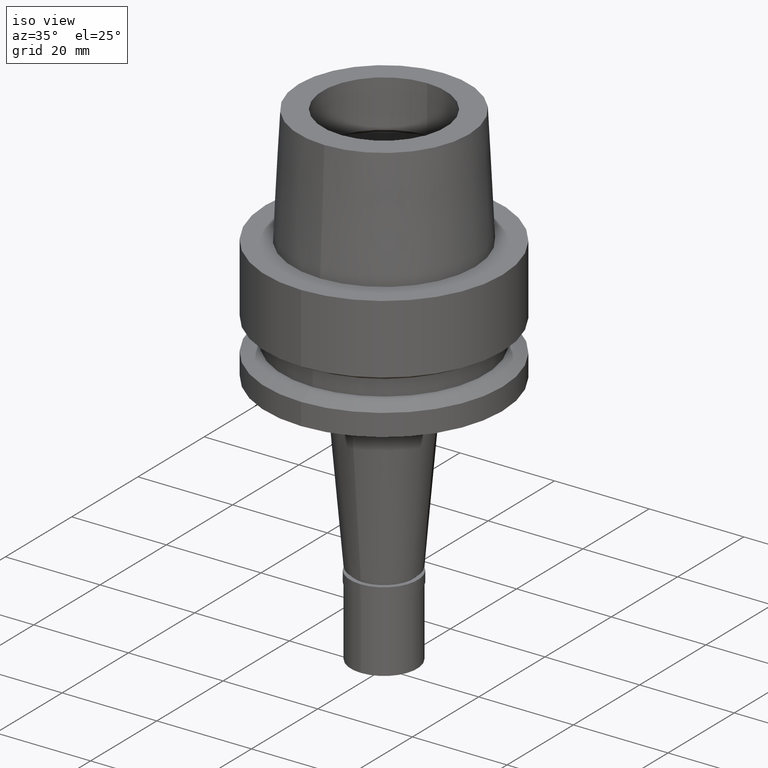
[diagram: clean part render]
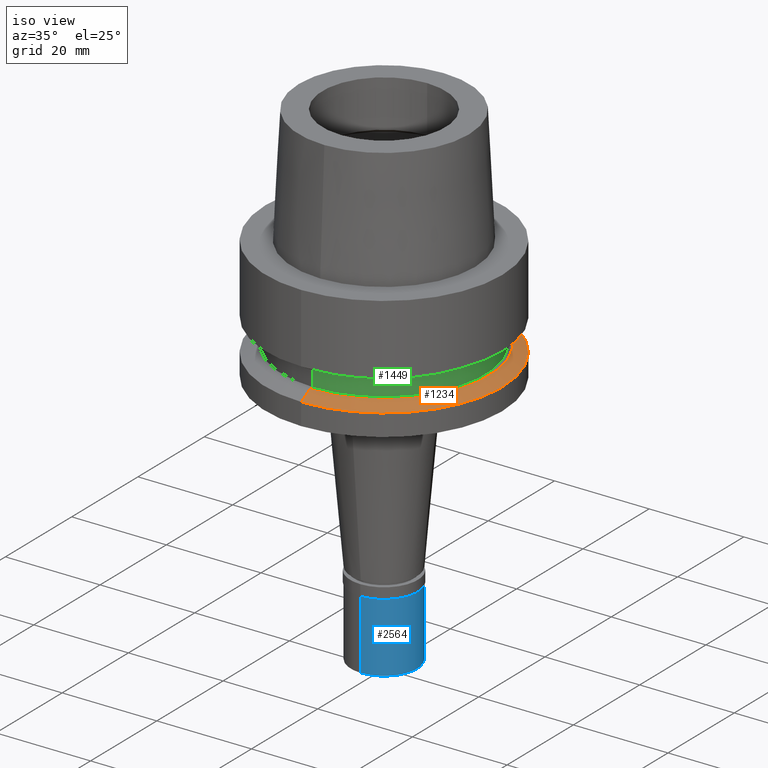
[diagram: same view with three faces highlighted in distinct colors, each labeled with its STEP entity id]
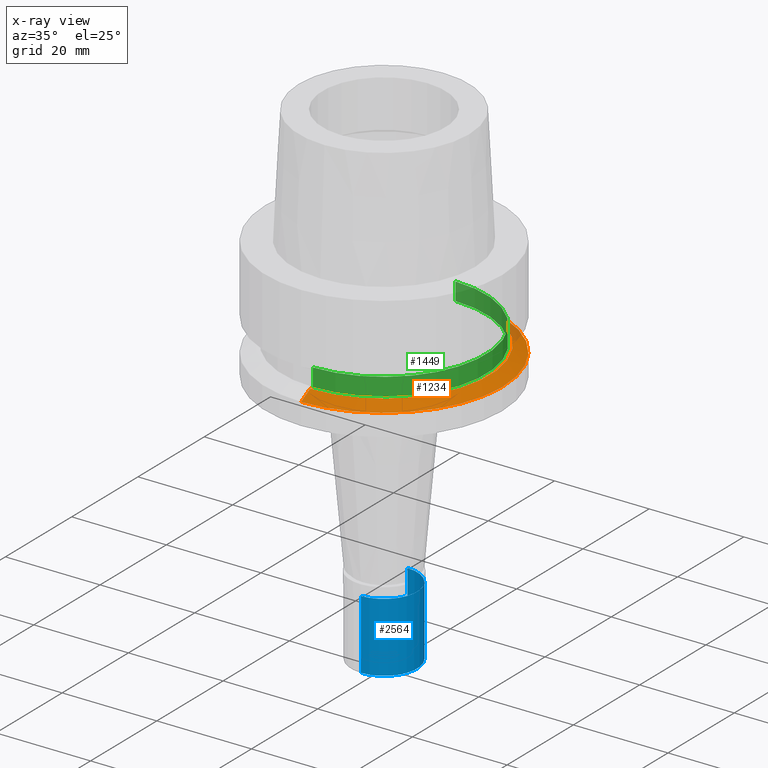
[diagram: x-ray of the same camera — body ghosted, the three highlighted faces saturated]
A machine part, iso view with three faces highlighted in distinct colors.
The next image is the same camera in x-ray (body ghosted, the three faces saturated) — at least one of them is partly hidden behind the body in this view.
Their STEP definitions:

[orange] entity #1234 — the highlighted conical surface has half-angle 60.97 deg.
#86 = DIRECTION ( 'NONE',  ( 0.0000000000000000000, -0.8743657415364817220, -0.4852675035764898448 ) ) ;
#90 = DIRECTION ( 'NONE',  ( 0.0000000000000000000, 1.000000000000000000, 0.0000000000000000000 ) ) ;
#100 = DIRECTION ( 'NONE',  ( 0.0000000000000000000, 0.0000000000000000000, -1.000000000000000000 ) ) ;
#208 = VERTEX_POINT ( 'NONE', #1000 ) ;
#239 = VECTOR ( 'NONE', #86, 1000.000000000000114 ) ;
#305 = EDGE_LOOP ( 'NONE', ( #1741, #1753, #691, #1824 ) ) ;
#344 = DIRECTION ( 'NONE',  ( 0.0000000000000000000, -1.000000000000000000, 0.0000000000000000000 ) ) ;
#504 = CARTESIAN_POINT ( 'NONE',  ( 0.0000000000000000000, -25.00000000000000000, -21.38164558085999900 ) ) ;
#505 = VERTEX_POINT ( 'NONE', #504 ) ;
#541 = CARTESIAN_POINT ( 'NONE',  ( 0.0000000000000000000, -22.28529260494000042, -19.87500000000000000 ) ) ;
#543 = AXIS2_PLACEMENT_3D ( 'NONE', #1522, #100, #90 ) ;
#691 = ORIENTED_EDGE ( 'NONE', *, *, #1420, .F. ) ;
#760 = CARTESIAN_POINT ( 'NONE',  ( 0.0000000000000000000, 0.0000000000000000000, -20.62832279043000128 ) ) ;
#781 = EDGE_CURVE ( 'NONE', #2465, #2222, #1236, .T. ) ;
#991 = DIRECTION ( 'NONE',  ( 0.0000000000000000000, 1.000000000000000000, 0.0000000000000000000 ) ) ;
#1000 = CARTESIAN_POINT ( 'NONE',  ( 0.0000000000000000000, -22.28529260494000042, -19.87500000000000000 ) ) ;
#1018 = CARTESIAN_POINT ( 'NONE',  ( 0.0000000000000000000, 0.0000000000000000000, -19.87500000000000000 ) ) ;
#1039 = AXIS2_PLACEMENT_3D ( 'NONE', #1018, #1840, #991 ) ;
#1083 = AXIS2_PLACEMENT_3D ( 'NONE', #760, #1402, #344 ) ;
#1184 = EDGE_CURVE ( 'NONE', #2465, #208, #2535, .T. ) ;
#1234 = ADVANCED_FACE ( 'NONE', ( #2425 ), #2448, .T. ) ;
#1236 = LINE ( 'NONE', #1630, #2541 ) ;
#1402 = DIRECTION ( 'NONE',  ( 0.0000000000000000000, 0.0000000000000000000, -1.000000000000000000 ) ) ;
#1420 = EDGE_CURVE ( 'NONE', #2222, #505, #1813, .T. ) ;
#1461 = CARTESIAN_POINT ( 'NONE',  ( 0.0000000000000000000, 22.28529260494000042, -19.87500000000000000 ) ) ;
#1522 = CARTESIAN_POINT ( 'NONE',  ( 0.0000000000000000000, 0.0000000000000000000, -21.38164558085999900 ) ) ;
#1630 = CARTESIAN_POINT ( 'NONE',  ( 0.0000000000000000000, 22.28529260494000042, -19.87500000000000000 ) ) ;
#1741 = ORIENTED_EDGE ( 'NONE', *, *, #1184, .T. ) ;
#1753 = ORIENTED_EDGE ( 'NONE', *, *, #1952, .T. ) ;
#1813 = CIRCLE ( 'NONE', #543, 25.00000000000000000 ) ;
#1824 = ORIENTED_EDGE ( 'NONE', *, *, #781, .F. ) ;
#1840 = DIRECTION ( 'NONE',  ( 0.0000000000000000000, 0.0000000000000000000, -1.000000000000000000 ) ) ;
#1952 = EDGE_CURVE ( 'NONE', #208, #505, #2183, .T. ) ;
#2183 = LINE ( 'NONE', #541, #239 ) ;
#2222 = VERTEX_POINT ( 'NONE', #2283 ) ;
#2283 = CARTESIAN_POINT ( 'NONE',  ( 0.0000000000000000000, 25.00000000000000000, -21.38164558085999900 ) ) ;
#2397 = DIRECTION ( 'NONE',  ( 0.0000000000000000000, 0.8743657415364817220, -0.4852675035764898448 ) ) ;
#2425 = FACE_OUTER_BOUND ( 'NONE', #305, .T. ) ;
#2448 = CONICAL_SURFACE ( 'NONE', #1083, 23.64264630247000198, 1.064127244940741290 ) ;
#2465 = VERTEX_POINT ( 'NONE', #1461 ) ;
#2535 = CIRCLE ( 'NONE', #1039, 22.28529260494000042 ) ;
#2541 = VECTOR ( 'NONE', #2397, 1000.000000000000114 ) ;

[blue] entity #2564 — the highlighted cylindrical surface (partial cylindrical patch) has radius 7 mm, axis along (0, 0, 1).
#126 = VERTEX_POINT ( 'NONE', #2335 ) ;
#227 = CARTESIAN_POINT ( 'NONE',  ( 0.0000000000000000000, 0.0000000000000000000, -17.85000000000000142 ) ) ;
#285 = DIRECTION ( 'NONE',  ( 0.0000000000000000000, 0.0000000000000000000, 1.000000000000000000 ) ) ;
#292 = CARTESIAN_POINT ( 'NONE',  ( 0.0000000000000000000, -7.000000000000000000, -2.299999999999999822 ) ) ;
#427 = CYLINDRICAL_SURFACE ( 'NONE', #1253, 7.000000000000000000 ) ;
#440 = EDGE_CURVE ( 'NONE', #2546, #126, #984, .T. ) ;
#469 = DIRECTION ( 'NONE',  ( 0.0000000000000000000, 1.000000000000000000, 0.0000000000000000000 ) ) ;
#637 = DIRECTION ( 'NONE',  ( 0.0000000000000000000, 1.000000000000000000, 0.0000000000000000000 ) ) ;
#718 = DIRECTION ( 'NONE',  ( 0.0000000000000000000, 0.0000000000000000000, -1.000000000000000000 ) ) ;
#757 = EDGE_CURVE ( 'NONE', #2357, #1860, #2161, .T. ) ;
#880 = CARTESIAN_POINT ( 'NONE',  ( 0.0000000000000000000, -7.000000000000000000, -17.00000000000000000 ) ) ;
#979 = CIRCLE ( 'NONE', #1163, 7.000000000000000000 ) ;
#984 = LINE ( 'NONE', #1610, #2537 ) ;
#985 = VECTOR ( 'NONE', #718, 1000.000000000000000 ) ;
#1078 = EDGE_LOOP ( 'NONE', ( #1098, #1713, #1869, #2696 ) ) ;
#1098 = ORIENTED_EDGE ( 'NONE', *, *, #2692, .T. ) ;
#1106 = CARTESIAN_POINT ( 'NONE',  ( 0.0000000000000000000, 0.0000000000000000000, -17.00000000000000000 ) ) ;
#1163 = AXIS2_PLACEMENT_3D ( 'NONE', #1368, #1519, #469 ) ;
#1253 = AXIS2_PLACEMENT_3D ( 'NONE', #227, #1284, #637 ) ;
#1284 = DIRECTION ( 'NONE',  ( 0.0000000000000000000, 0.0000000000000000000, 1.000000000000000000 ) ) ;
#1350 = AXIS2_PLACEMENT_3D ( 'NONE', #1106, #285, #2351 ) ;
#1368 = CARTESIAN_POINT ( 'NONE',  ( 0.0000000000000000000, 0.0000000000000000000, -2.299999999999999822 ) ) ;
#1469 = EDGE_CURVE ( 'NONE', #1860, #126, #2239, .T. ) ;
#1519 = DIRECTION ( 'NONE',  ( 0.0000000000000000000, 0.0000000000000000000, -1.000000000000000000 ) ) ;
#1610 = CARTESIAN_POINT ( 'NONE',  ( 0.0000000000000000000, 7.000000000000000000, -2.299999999999999822 ) ) ;
#1713 = ORIENTED_EDGE ( 'NONE', *, *, #757, .T. ) ;
#1860 = VERTEX_POINT ( 'NONE', #880 ) ;
#1869 = ORIENTED_EDGE ( 'NONE', *, *, #1469, .T. ) ;
#2030 = DIRECTION ( 'NONE',  ( 0.0000000000000000000, 0.0000000000000000000, -1.000000000000000000 ) ) ;
#2161 = LINE ( 'NONE', #292, #985 ) ;
#2239 = CIRCLE ( 'NONE', #1350, 7.000000000000000000 ) ;
#2262 = CARTESIAN_POINT ( 'NONE',  ( 0.0000000000000000000, 7.000000000000000000, -2.299999999999999822 ) ) ;
#2289 = FACE_OUTER_BOUND ( 'NONE', #1078, .T. ) ;
#2335 = CARTESIAN_POINT ( 'NONE',  ( 0.0000000000000000000, 7.000000000000000000, -17.00000000000000000 ) ) ;
#2351 = DIRECTION ( 'NONE',  ( 0.0000000000000000000, -1.000000000000000000, 0.0000000000000000000 ) ) ;
#2357 = VERTEX_POINT ( 'NONE', #2519 ) ;
#2519 = CARTESIAN_POINT ( 'NONE',  ( 0.0000000000000000000, -7.000000000000000000, -2.299999999999999822 ) ) ;
#2537 = VECTOR ( 'NONE', #2030, 1000.000000000000000 ) ;
#2546 = VERTEX_POINT ( 'NONE', #2262 ) ;
#2564 = ADVANCED_FACE ( 'NONE', ( #2289 ), #427, .T. ) ;
#2692 = EDGE_CURVE ( 'NONE', #2546, #2357, #979, .T. ) ;
#2696 = ORIENTED_EDGE ( 'NONE', *, *, #440, .F. ) ;

[green] entity #1449 — the highlighted cylindrical surface (partial cylindrical patch) has radius 21.5 mm, axis along (0, 0, -1).
#49 = CARTESIAN_POINT ( 'NONE',  ( 0.0000000000000000000, -21.50000000000000000, -16.12500000000000000 ) ) ;
#207 = ORIENTED_EDGE ( 'NONE', *, *, #1245, .T. ) ;
#219 = VERTEX_POINT ( 'NONE', #368 ) ;
#300 = VERTEX_POINT ( 'NONE', #1833 ) ;
#315 = CIRCLE ( 'NONE', #2533, 21.50000000000000000 ) ;
#368 = CARTESIAN_POINT ( 'NONE',  ( 0.0000000000000000000, -21.50000000000000000, -16.12500000000000000 ) ) ;
#404 = DIRECTION ( 'NONE',  ( 0.0000000000000000000, 1.000000000000000000, 0.0000000000000000000 ) ) ;
#428 = ORIENTED_EDGE ( 'NONE', *, *, #665, .T. ) ;
#442 = CARTESIAN_POINT ( 'NONE',  ( 0.0000000000000000000, 21.50000000000000000, -19.87500000000000000 ) ) ;
#460 = DIRECTION ( 'NONE',  ( 0.0000000000000000000, -1.000000000000000000, 0.0000000000000000000 ) ) ;
#473 = DIRECTION ( 'NONE',  ( 0.0000000000000000000, 0.0000000000000000000, -1.000000000000000000 ) ) ;
#503 = DIRECTION ( 'NONE',  ( 0.0000000000000000000, 0.0000000000000000000, -1.000000000000000000 ) ) ;
#630 = CARTESIAN_POINT ( 'NONE',  ( 0.0000000000000000000, 21.50000000000000000, -16.12500000000000000 ) ) ;
#665 = EDGE_CURVE ( 'NONE', #300, #969, #1564, .T. ) ;
#672 = DIRECTION ( 'NONE',  ( 0.0000000000000000000, -1.000000000000000000, 0.0000000000000000000 ) ) ;
#768 = CARTESIAN_POINT ( 'NONE',  ( 0.0000000000000000000, 21.50000000000000000, -16.12500000000000000 ) ) ;
#836 = CARTESIAN_POINT ( 'NONE',  ( 0.0000000000000000000, 0.0000000000000000000, -16.12500000000000000 ) ) ;
#876 = ORIENTED_EDGE ( 'NONE', *, *, #981, .T. ) ;
#942 = CYLINDRICAL_SURFACE ( 'NONE', #2019, 21.50000000000000000 ) ;
#969 = VERTEX_POINT ( 'NONE', #442 ) ;
#981 = EDGE_CURVE ( 'NONE', #1739, #219, #315, .T. ) ;
#1074 = DIRECTION ( 'NONE',  ( 0.0000000000000000000, 0.0000000000000000000, -1.000000000000000000 ) ) ;
#1245 = EDGE_CURVE ( 'NONE', #219, #300, #2314, .T. ) ;
#1449 = ADVANCED_FACE ( 'NONE', ( #2547 ), #942, .T. ) ;
#1564 = CIRCLE ( 'NONE', #2279, 21.50000000000000000 ) ;
#1709 = ORIENTED_EDGE ( 'NONE', *, *, #2391, .F. ) ;
#1739 = VERTEX_POINT ( 'NONE', #768 ) ;
#1833 = CARTESIAN_POINT ( 'NONE',  ( 0.0000000000000000000, -21.50000000000000000, -19.87500000000000000 ) ) ;
#1851 = VECTOR ( 'NONE', #473, 1000.000000000000000 ) ;
#1961 = VECTOR ( 'NONE', #2292, 1000.000000000000000 ) ;
#2019 = AXIS2_PLACEMENT_3D ( 'NONE', #2165, #503, #460 ) ;
#2119 = CARTESIAN_POINT ( 'NONE',  ( 0.0000000000000000000, 0.0000000000000000000, -19.87500000000000000 ) ) ;
#2125 = LINE ( 'NONE', #630, #1961 ) ;
#2165 = CARTESIAN_POINT ( 'NONE',  ( 0.0000000000000000000, 0.0000000000000000000, 30.05000000000000071 ) ) ;
#2279 = AXIS2_PLACEMENT_3D ( 'NONE', #2119, #2522, #672 ) ;
#2292 = DIRECTION ( 'NONE',  ( 0.0000000000000000000, 0.0000000000000000000, -1.000000000000000000 ) ) ;
#2314 = LINE ( 'NONE', #49, #1851 ) ;
#2391 = EDGE_CURVE ( 'NONE', #1739, #969, #2125, .T. ) ;
#2522 = DIRECTION ( 'NONE',  ( 0.0000000000000000000, 0.0000000000000000000, 1.000000000000000000 ) ) ;
#2533 = AXIS2_PLACEMENT_3D ( 'NONE', #836, #1074, #404 ) ;
#2547 = FACE_OUTER_BOUND ( 'NONE', #2548, .T. ) ;
#2548 = EDGE_LOOP ( 'NONE', ( #876, #207, #428, #1709 ) ) ;